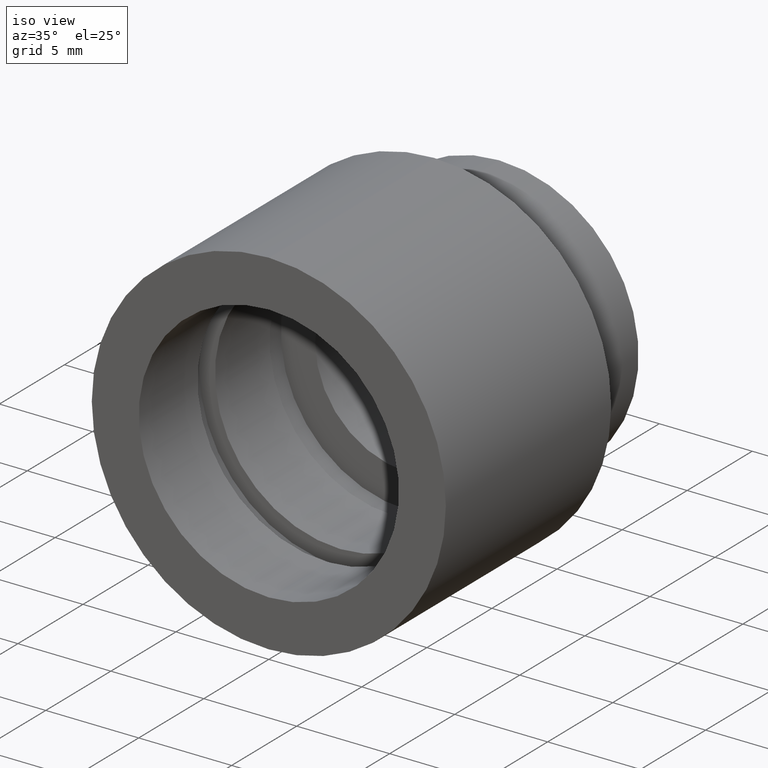
[diagram: clean part render]
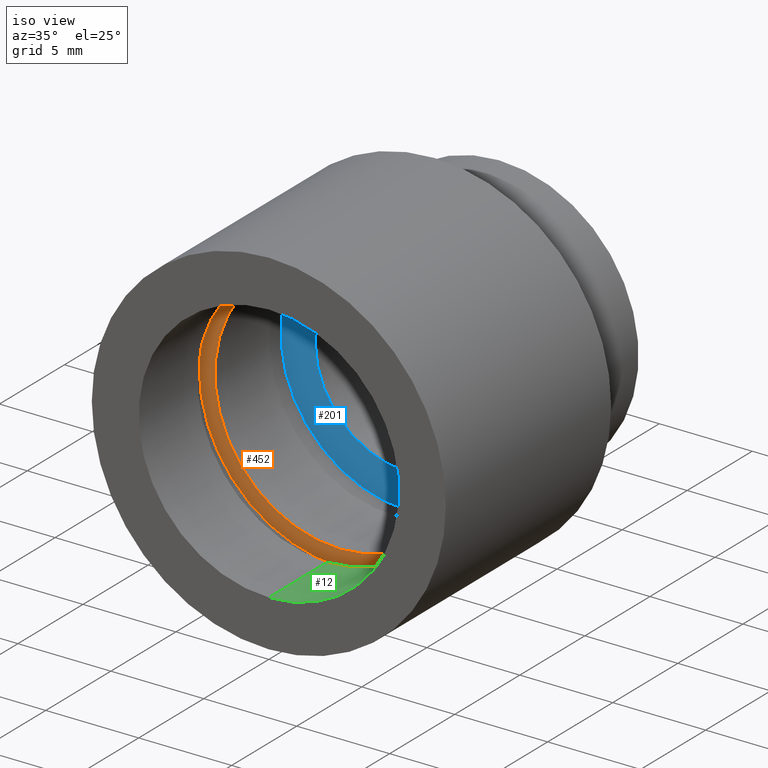
[diagram: same view with three faces highlighted in distinct colors, each labeled with its STEP entity id]
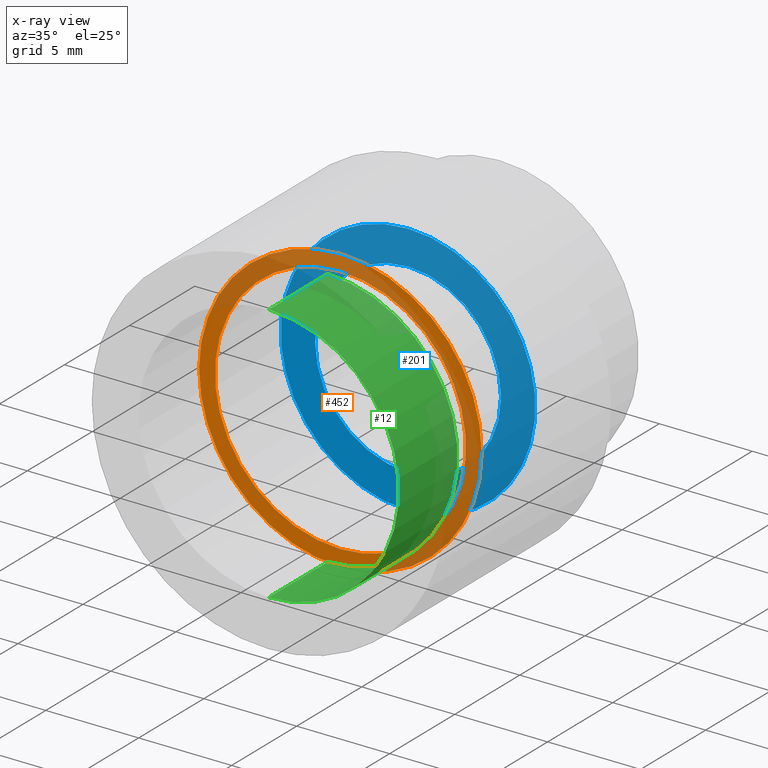
[diagram: x-ray of the same camera — body ghosted, the three highlighted faces saturated]
A machine part, iso view with three faces highlighted in distinct colors.
The next image is the same camera in x-ray (body ghosted, the three faces saturated) — at least one of them is partly hidden behind the body in this view.
Their STEP definitions:

[orange] entity #452 — the highlighted planar face has unit normal (-0, 1, 0).
#33 = CARTESIAN_POINT ( 'NONE',  ( 0.000000000000000000, 5.499999999999976907, 0.000000000000000000 ) ) ;
#42 = EDGE_LOOP ( 'NONE', ( #149, #436 ) ) ;
#48 = VERTEX_POINT ( 'NONE', #349 ) ;
#105 = CARTESIAN_POINT ( 'NONE',  ( 9.307315673519907153E-16, 5.499999999999976907, -7.600000000000019185 ) ) ;
#114 = EDGE_CURVE ( 'NONE', #438, #692, #515, .T. ) ;
#134 = CARTESIAN_POINT ( 'NONE',  ( 8.266365894244657013E-16, 5.499999999999976907, -6.750000000000018652 ) ) ;
#145 = CARTESIAN_POINT ( 'NONE',  ( 0.000000000000000000, 5.499999999999976907, 0.000000000000000000 ) ) ;
#149 = ORIENTED_EDGE ( 'NONE', *, *, #327, .T. ) ;
#163 = EDGE_CURVE ( 'NONE', #48, #432, #296, .T. ) ;
#176 = CARTESIAN_POINT ( 'NONE',  ( 6.750000000000018652, 5.499999999999984013, 0.000000000000000000 ) ) ;
#183 = FACE_BOUND ( 'NONE', #42, .T. ) ;
#214 = EDGE_LOOP ( 'NONE', ( #669, #488 ) ) ;
#266 = CIRCLE ( 'NONE', #385, 6.750000000000018652 ) ;
#286 = AXIS2_PLACEMENT_3D ( 'NONE', #145, #325, #504 ) ;
#296 = CIRCLE ( 'NONE', #717, 7.600000000000019185 ) ;
#312 = EDGE_CURVE ( 'NONE', #432, #48, #580, .T. ) ;
#323 = DIRECTION ( 'NONE',  ( -0.000000000000000000, 1.000000000000000000, -0.000000000000000000 ) ) ;
#325 = DIRECTION ( 'NONE',  ( -0.000000000000000000, 1.000000000000000000, -0.000000000000000000 ) ) ;
#327 = EDGE_CURVE ( 'NONE', #692, #438, #266, .T. ) ;
#336 = DIRECTION ( 'NONE',  ( 0.000000000000000000, 0.000000000000000000, 1.000000000000000000 ) ) ;
#349 = CARTESIAN_POINT ( 'NONE',  ( 0.000000000000000000, 5.499999999999976907, 7.600000000000019185 ) ) ;
#377 = DIRECTION ( 'NONE',  ( 0.000000000000000000, 0.000000000000000000, 1.000000000000000000 ) ) ;
#385 = AXIS2_PLACEMENT_3D ( 'NONE', #388, #323, #560 ) ;
#388 = CARTESIAN_POINT ( 'NONE',  ( 0.000000000000000000, 5.499999999999976907, 0.000000000000000000 ) ) ;
#396 = PLANE ( 'NONE',  #400 ) ;
#399 = DIRECTION ( 'NONE',  ( -0.000000000000000000, 1.000000000000000000, 0.000000000000000000 ) ) ;
#400 = AXIS2_PLACEMENT_3D ( 'NONE', #176, #399, #336 ) ;
#432 = VERTEX_POINT ( 'NONE', #105 ) ;
#436 = ORIENTED_EDGE ( 'NONE', *, *, #114, .T. ) ;
#438 = VERTEX_POINT ( 'NONE', #134 ) ;
#452 = ADVANCED_FACE ( 'NONE', ( #631, #183 ), #396, .F. ) ;
#486 = CARTESIAN_POINT ( 'NONE',  ( 0.000000000000000000, 5.499999999999976907, 0.000000000000000000 ) ) ;
#488 = ORIENTED_EDGE ( 'NONE', *, *, #312, .F. ) ;
#504 = DIRECTION ( 'NONE',  ( 0.000000000000000000, 0.000000000000000000, 1.000000000000000000 ) ) ;
#515 = CIRCLE ( 'NONE', #555, 6.750000000000018652 ) ;
#555 = AXIS2_PLACEMENT_3D ( 'NONE', #33, #666, #377 ) ;
#560 = DIRECTION ( 'NONE',  ( 0.000000000000000000, 0.000000000000000000, 1.000000000000000000 ) ) ;
#580 = CIRCLE ( 'NONE', #286, 7.600000000000019185 ) ;
#590 = CARTESIAN_POINT ( 'NONE',  ( 0.000000000000000000, 5.499999999999976907, 6.750000000000018652 ) ) ;
#631 = FACE_OUTER_BOUND ( 'NONE', #214, .T. ) ;
#663 = DIRECTION ( 'NONE',  ( -0.000000000000000000, 1.000000000000000000, -0.000000000000000000 ) ) ;
#666 = DIRECTION ( 'NONE',  ( -0.000000000000000000, 1.000000000000000000, -0.000000000000000000 ) ) ;
#669 = ORIENTED_EDGE ( 'NONE', *, *, #163, .F. ) ;
#692 = VERTEX_POINT ( 'NONE', #590 ) ;
#709 = DIRECTION ( 'NONE',  ( 0.000000000000000000, 0.000000000000000000, 1.000000000000000000 ) ) ;
#717 = AXIS2_PLACEMENT_3D ( 'NONE', #486, #663, #709 ) ;

[blue] entity #201 — the highlighted planar face has unit normal (-0, 1, 0).
#17 = CIRCLE ( 'NONE', #107, 6.850000000000017408 ) ;
#49 = DIRECTION ( 'NONE',  ( 0.000000000000000000, 0.000000000000000000, 1.000000000000000000 ) ) ;
#52 = CIRCLE ( 'NONE', #683, 6.850000000000017408 ) ;
#82 = ORIENTED_EDGE ( 'NONE', *, *, #517, .T. ) ;
#93 = CARTESIAN_POINT ( 'NONE',  ( 8.388830574159390583E-16, 10.69999999999996021, -6.850000000000017408 ) ) ;
#107 = AXIS2_PLACEMENT_3D ( 'NONE', #123, #126, #245 ) ;
#123 = CARTESIAN_POINT ( 'NONE',  ( 0.000000000000000000, 10.69999999999996021, 0.000000000000000000 ) ) ;
#126 = DIRECTION ( 'NONE',  ( -0.000000000000000000, 1.000000000000000000, -0.000000000000000000 ) ) ;
#144 = VERTEX_POINT ( 'NONE', #603 ) ;
#179 = CIRCLE ( 'NONE', #512, 5.000000000000016875 ) ;
#201 = ADVANCED_FACE ( 'NONE', ( #207, #659 ), #373, .F. ) ;
#205 = DIRECTION ( 'NONE',  ( -0.000000000000000000, 1.000000000000000000, -0.000000000000000000 ) ) ;
#207 = FACE_OUTER_BOUND ( 'NONE', #348, .T. ) ;
#208 = CIRCLE ( 'NONE', #682, 5.000000000000016875 ) ;
#220 = DIRECTION ( 'NONE',  ( 0.000000000000000000, 0.000000000000000000, 1.000000000000000000 ) ) ;
#230 = DIRECTION ( 'NONE',  ( -0.000000000000000000, 1.000000000000000000, -0.000000000000000000 ) ) ;
#245 = DIRECTION ( 'NONE',  ( 0.000000000000000000, 0.000000000000000000, 1.000000000000000000 ) ) ;
#251 = DIRECTION ( 'NONE',  ( -0.000000000000000000, 1.000000000000000000, 0.000000000000000000 ) ) ;
#272 = DIRECTION ( 'NONE',  ( -0.000000000000000000, 1.000000000000000000, -0.000000000000000000 ) ) ;
#297 = ORIENTED_EDGE ( 'NONE', *, *, #309, .F. ) ;
#309 = EDGE_CURVE ( 'NONE', #596, #144, #52, .T. ) ;
#340 = EDGE_LOOP ( 'NONE', ( #82, #551 ) ) ;
#345 = CARTESIAN_POINT ( 'NONE',  ( 0.000000000000000000, 10.69999999999996021, 5.000000000000016875 ) ) ;
#348 = EDGE_LOOP ( 'NONE', ( #598, #297 ) ) ;
#352 = DIRECTION ( 'NONE',  ( 0.000000000000000000, 0.000000000000000000, 1.000000000000000000 ) ) ;
#373 = PLANE ( 'NONE',  #403 ) ;
#395 = EDGE_CURVE ( 'NONE', #144, #596, #17, .T. ) ;
#403 = AXIS2_PLACEMENT_3D ( 'NONE', #537, #251, #49 ) ;
#411 = CARTESIAN_POINT ( 'NONE',  ( 0.000000000000000000, 10.69999999999996021, 0.000000000000000000 ) ) ;
#434 = DIRECTION ( 'NONE',  ( 0.000000000000000000, 0.000000000000000000, 1.000000000000000000 ) ) ;
#451 = VERTEX_POINT ( 'NONE', #464 ) ;
#464 = CARTESIAN_POINT ( 'NONE',  ( 6.123233995736786004E-16, 10.69999999999996021, -5.000000000000016875 ) ) ;
#481 = VERTEX_POINT ( 'NONE', #345 ) ;
#497 = CARTESIAN_POINT ( 'NONE',  ( 0.000000000000000000, 10.69999999999996021, 0.000000000000000000 ) ) ;
#512 = AXIS2_PLACEMENT_3D ( 'NONE', #411, #230, #352 ) ;
#517 = EDGE_CURVE ( 'NONE', #481, #451, #179, .T. ) ;
#537 = CARTESIAN_POINT ( 'NONE',  ( 5.000000000000016875, 10.69999999999997264, 0.000000000000000000 ) ) ;
#551 = ORIENTED_EDGE ( 'NONE', *, *, #650, .T. ) ;
#596 = VERTEX_POINT ( 'NONE', #93 ) ;
#598 = ORIENTED_EDGE ( 'NONE', *, *, #395, .F. ) ;
#603 = CARTESIAN_POINT ( 'NONE',  ( 0.000000000000000000, 10.69999999999996021, 6.850000000000017408 ) ) ;
#650 = EDGE_CURVE ( 'NONE', #451, #481, #208, .T. ) ;
#659 = FACE_BOUND ( 'NONE', #340, .T. ) ;
#682 = AXIS2_PLACEMENT_3D ( 'NONE', #716, #205, #434 ) ;
#683 = AXIS2_PLACEMENT_3D ( 'NONE', #497, #272, #220 ) ;
#716 = CARTESIAN_POINT ( 'NONE',  ( 0.000000000000000000, 10.69999999999996021, 0.000000000000000000 ) ) ;

[green] entity #12 — the highlighted cylindrical surface (partial cylindrical patch) has radius 7 mm, axis along (-0, 1, -0).
#12 = ADVANCED_FACE ( 'NONE', ( #291 ), #234, .F. ) ;
#18 = CARTESIAN_POINT ( 'NONE',  ( 8.572527594031496856E-16, 4.499999999999976019, -7.000000000000020428 ) ) ;
#29 = VERTEX_POINT ( 'NONE', #18 ) ;
#30 = VECTOR ( 'NONE', #697, 1000.000000000000000 ) ;
#53 = EDGE_CURVE ( 'NONE', #60, #29, #83, .T. ) ;
#60 = VERTEX_POINT ( 'NONE', #344 ) ;
#62 = CARTESIAN_POINT ( 'NONE',  ( 0.000000000000000000, -2.775557561562891351E-14, 7.000000000000020428 ) ) ;
#70 = CIRCLE ( 'NONE', #629, 7.000000000000020428 ) ;
#78 = CARTESIAN_POINT ( 'NONE',  ( 0.000000000000000000, 161.3761669434274495, 7.000000000000020428 ) ) ;
#83 = CIRCLE ( 'NONE', #490, 7.000000000000020428 ) ;
#87 = EDGE_CURVE ( 'NONE', #182, #29, #362, .T. ) ;
#122 = DIRECTION ( 'NONE',  ( 0.000000000000000000, 0.000000000000000000, 1.000000000000000000 ) ) ;
#137 = CARTESIAN_POINT ( 'NONE',  ( 0.000000000000000000, 161.3761669434274495, 0.000000000000000000 ) ) ;
#138 = AXIS2_PLACEMENT_3D ( 'NONE', #137, #647, #693 ) ;
#153 = CARTESIAN_POINT ( 'NONE',  ( 8.572527594031496856E-16, -2.775557561562891351E-14, -7.000000000000020428 ) ) ;
#182 = VERTEX_POINT ( 'NONE', #153 ) ;
#184 = ORIENTED_EDGE ( 'NONE', *, *, #53, .T. ) ;
#234 = CYLINDRICAL_SURFACE ( 'NONE', #138, 7.000000000000020428 ) ;
#291 = FACE_OUTER_BOUND ( 'NONE', #318, .T. ) ;
#318 = EDGE_LOOP ( 'NONE', ( #632, #367, #563, #184 ) ) ;
#344 = CARTESIAN_POINT ( 'NONE',  ( 0.000000000000000000, 4.499999999999976019, 7.000000000000020428 ) ) ;
#362 = LINE ( 'NONE', #542, #417 ) ;
#367 = ORIENTED_EDGE ( 'NONE', *, *, #478, .F. ) ;
#378 = VERTEX_POINT ( 'NONE', #62 ) ;
#402 = CARTESIAN_POINT ( 'NONE',  ( 0.000000000000000000, 4.499999999999976019, 0.000000000000000000 ) ) ;
#417 = VECTOR ( 'NONE', #712, 1000.000000000000000 ) ;
#457 = LINE ( 'NONE', #78, #30 ) ;
#478 = EDGE_CURVE ( 'NONE', #378, #182, #70, .T. ) ;
#490 = AXIS2_PLACEMENT_3D ( 'NONE', #402, #630, #634 ) ;
#500 = EDGE_CURVE ( 'NONE', #378, #60, #457, .T. ) ;
#511 = CARTESIAN_POINT ( 'NONE',  ( 0.000000000000000000, -2.775557561562891351E-14, 0.000000000000000000 ) ) ;
#542 = CARTESIAN_POINT ( 'NONE',  ( 8.572527594031496856E-16, 161.3761669434274495, -7.000000000000020428 ) ) ;
#563 = ORIENTED_EDGE ( 'NONE', *, *, #500, .T. ) ;
#629 = AXIS2_PLACEMENT_3D ( 'NONE', #511, #641, #122 ) ;
#630 = DIRECTION ( 'NONE',  ( -0.000000000000000000, 1.000000000000000000, -0.000000000000000000 ) ) ;
#632 = ORIENTED_EDGE ( 'NONE', *, *, #87, .F. ) ;
#634 = DIRECTION ( 'NONE',  ( 0.000000000000000000, 0.000000000000000000, 1.000000000000000000 ) ) ;
#641 = DIRECTION ( 'NONE',  ( -0.000000000000000000, 1.000000000000000000, -0.000000000000000000 ) ) ;
#647 = DIRECTION ( 'NONE',  ( -0.000000000000000000, 1.000000000000000000, -0.000000000000000000 ) ) ;
#693 = DIRECTION ( 'NONE',  ( 0.000000000000000000, 0.000000000000000000, 1.000000000000000000 ) ) ;
#697 = DIRECTION ( 'NONE',  ( -0.000000000000000000, 1.000000000000000000, -0.000000000000000000 ) ) ;
#712 = DIRECTION ( 'NONE',  ( -0.000000000000000000, 1.000000000000000000, -0.000000000000000000 ) ) ;